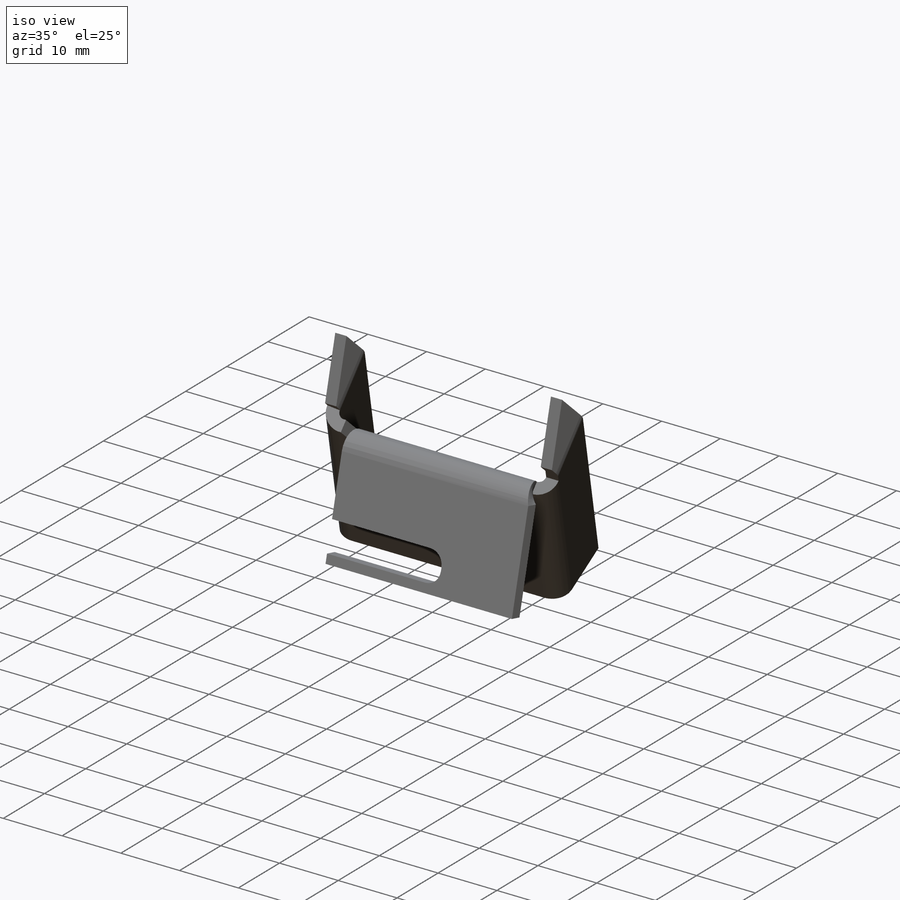
[diagram: iso view]
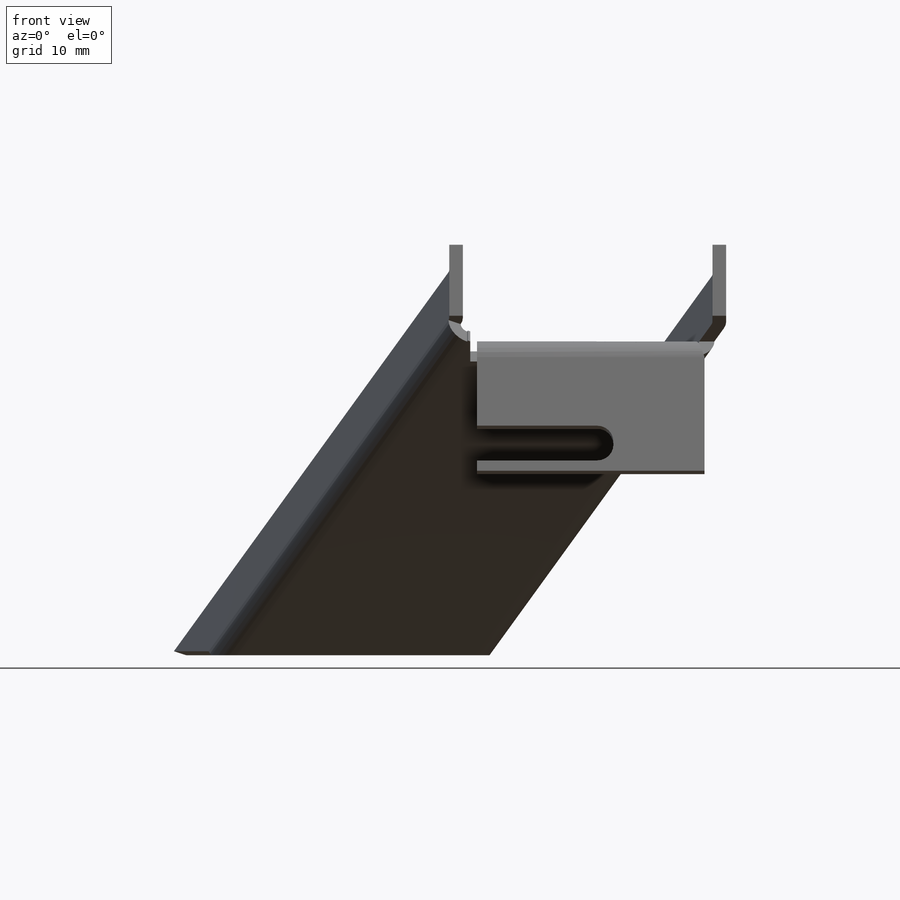
[diagram: front view]
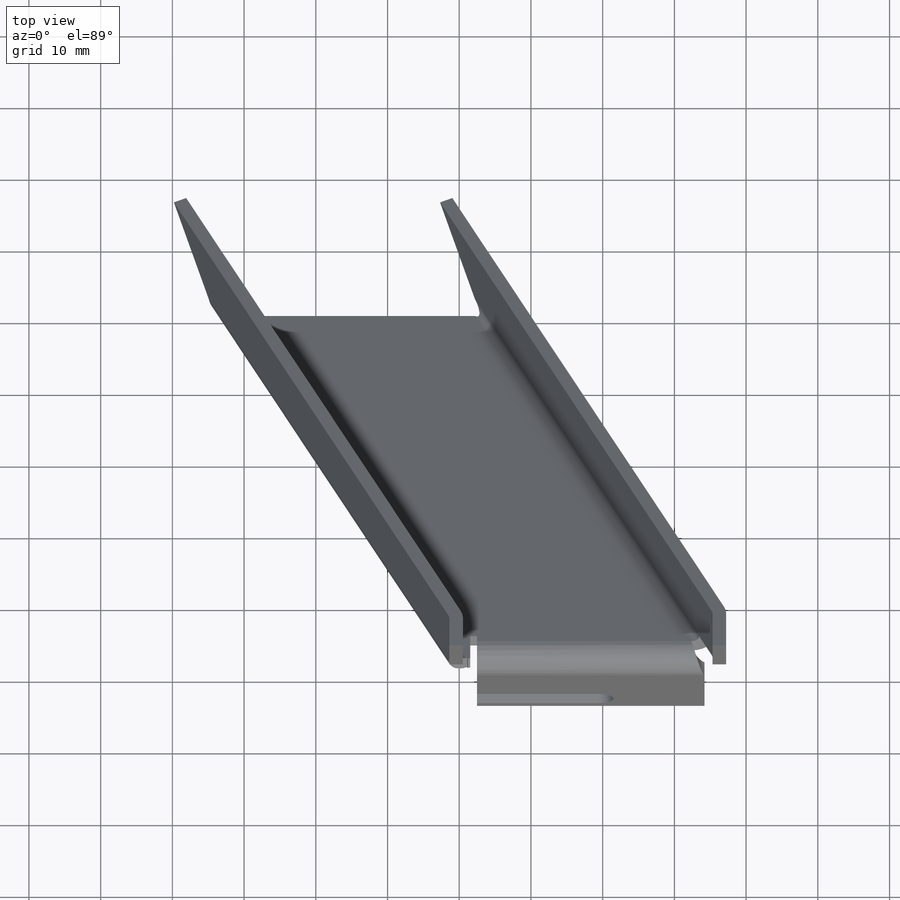
[diagram: top view]
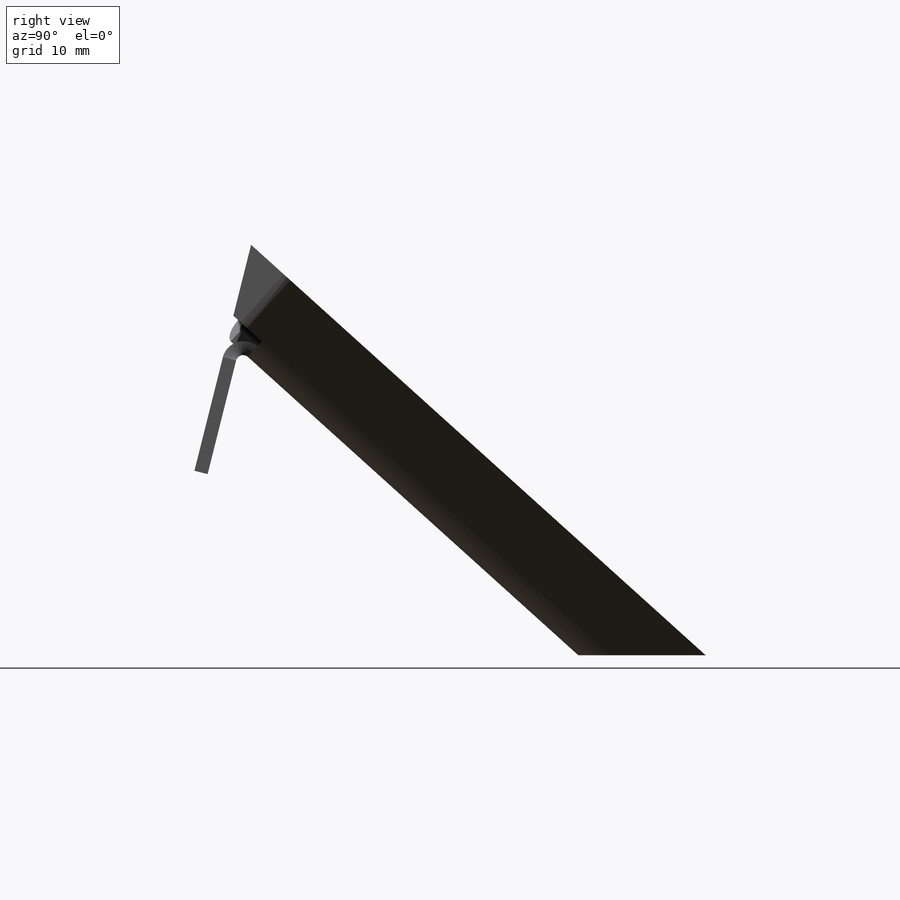
[diagram: right view]
SOLIDWORKS PART (.sldprt)
format: sldprt  version: not decoded by parser v0  size: 1,026,048 bytes
history: native  units: mm
features: sketch x34, sheet_metal_op x16, cut_extrude x4, material x1 + 11 further entries (+13 scaffold rows collapsed; 11 parser-record rows omitted)
feature tree (90):
  scaffold x13  (default folders/planes/origin — collapsed)
  material  "Material <not specified>"
  sketch  "Sketch1"  dims[D1=1.27mm D2=0.5 D3=0.0mm D6=500.0mm]
  sheet_metal_op  "Base-Flange1"
  sketch  "Sketch10"  dims[c1.D1=1.0mm c1.D4=90.0deg c1.D5=1.0 c1.D8=~0.60706mm c1.D9=~0.60706mm c2.D1=1.27mm c2.D2=500.0mm c2.D3=0.0mm c2.D6=10.0mm c2.D7=10.0mm c2.Edge-Flange2=0.0]
  sketch  "Sketch13"
  sheet_metal_op  "EdgeBend2"  Edge-Flange7=0
  sketch  "Sketch28"
  sheet_metal_op  "EdgeBend7"  Edge-Flange8=0
  sketch  "Sketch31"
  sheet_metal_op  "EdgeBend8"  Edge-Flange9=0
  sketch  "Sketch34"
  sheet_metal_op  "EdgeBend9"
  sketch  "Sketch35"
  cut_extrude  "Cut-Extrude1"  [1 undecoded]
  sketch  "Sketch36"
  cut_extrude  "Cut-Extrude2"  [1 undecoded]
  sketch  "Sketch38"  dims[D1=3.0mm]
  cut_extrude  "Cut-Extrude4"  Depth=10mm
  sketch  "Sketch39"  dims[D2=2.25mm D3=2.25mm D1=5.0mm]
  cut_extrude  "Cut-Extrude5"  Depth=10mm
  sketch  "Bend-Lines1"
  sketch  "Bounding-Box1"
  sheet_metal_op  "Sheet-Metal1"
  "Flat-Pattern1"
  sketch  "Bend-Lines2"
  sketch  "Bounding-Box2"
  parser-record x11  (decoder bookkeeping rows leaked as tree rows — omitted from the tree; the rows remain in map.json)
  sheet_metal_op  "Sheet-Metal2"
  "Flat-Pattern1"
  sketch  "Bend-Lines2"
  sketch  "Bounding-Box2"
  sheet_metal_op  "Sheet-Metal3"
  "Flat-Pattern1"
  sketch  "Bend-Lines2"
  sketch  "Bounding-Box2"
  sheet_metal_op  "Sheet-Metal4"
  "Flat-Pattern1"
  sketch  "Bend-Lines2"
  sketch  "Bounding-Box2"
  sheet_metal_op  "Sheet-Metal5"
  "Flat-Pattern1"
  sketch  "Bend-Lines2"
  sketch  "Bounding-Box2"
  sheet_metal_op  "Sheet-Metal6"
  "Flat-Pattern1"
  sketch  "Bend-Lines2"
  sketch  "Bounding-Box2"
  sheet_metal_op  "Sheet-Metal7"
  "Flat-Pattern1"
  sketch  "Bend-Lines2"
  sketch  "Bounding-Box2"
  sheet_metal_op  "Sheet-Metal8"
  "Flat-Pattern1"
  sketch  "Bend-Lines2"
  sketch  "Bounding-Box2"
  sheet_metal_op  "Sheet-Metal10"
  "Flat-Pattern10"
  sketch  "Bend-Lines3"
  sketch  "Bounding-Box3"
  sheet_metal_op  "Sheet-Metal11"
  "Flat-Pattern1"
  sketch  "Bend-Lines2"
  sketch  "Bounding-Box2"
  sheet_metal_op  "Sheet-Metal13"
  "Flat-Pattern1"
  sketch  "Bend-Lines2"
  sketch  "Bounding-Box2"
decode coverage: 9 of 54 modeling features carry decoded parameters; 11 rows unclassified (native names shown)
note: ~ marks probable driven/reference dimensions
note: 2 parameter values undecoded
note: suppression state not decoded; provenance and decode notes live in map.json
